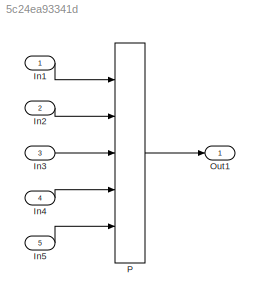
MODEL slx_5c24ea93341d
KIND model
CONFIG AbsTol = auto
CONFIG EnableMultiTasking = off
CONFIG FixedStep = auto
CONFIG MaxStep = auto
CONFIG MinStep = auto
CONFIG RelTol = 1e-3
CONFIG SampleTimeConstraint = Unconstrained
CONFIG Solver = FixedStepDiscrete
CONFIG SolverName = FixedStepDiscrete
CONFIG StartTime = 0.0
CONFIG StopTime = 10.0
BLOCK [Inport] In1
  IconDisplay = Port number
  OutDataTypeStr = uint16
  OutMax = 127
  OutMin = 0
  PortDimensions = 1
BLOCK [Inport] In2
  IconDisplay = Port number
  OutDataTypeStr = uint16
  OutMax = 127
  OutMin = 0
  Port = 2
BLOCK [Inport] In3
  IconDisplay = Port number
  OutDataTypeStr = uint16
  OutMax = 127
  OutMin = 0
  Port = 3
BLOCK [Inport] In4
  IconDisplay = Port number
  OutDataTypeStr = uint16
  OutMax = 127
  OutMin = 0
  Port = 4
BLOCK [Inport] In5
  IconDisplay = Port number
  OutDataTypeStr = uint16
  OutMax = 127
  OutMin = 0
  Port = 5
BLOCK [Outport] Out1
  IconDisplay = Port number
BLOCK [Lookup_n-D] P
  BreakpointsForDimension1 = [33.52655404423;65.684364410211]
  BreakpointsForDimension1DataTypeStr = uint8
  BreakpointsForDimension2 = [10.0247000996319;42.4066314454977;64.7030151177043;92.5736199402267;98.5706371241846]
  BreakpointsForDimension2DataTypeStr = uint8
  BreakpointsForDimension3 = [13.6660689109613;73.9620228661448;88.3198327993509]
  BreakpointsForDimension3DataTypeStr = uint8
  BreakpointsForDimension4 = [6.0885242694459;38.1838709600621]
  BreakpointsForDimension4DataTypeStr = uint8
  BreakpointsForDimension5 = [52.525770642839;60.7033100453501;90.3280215422356]
  BreakpointsForDimension5DataTypeStr = uint8
  ExtrapMethod = Clip
  InternalRulePriority = Speed
  InterpMethod = Flat
  NumberOfTableDimensions = 5
  OutDataTypeStr = uint8
  Ports = [5, 1]
  RndMeth = Round
  SaturateOnIntegerOverflow = on
  Table = reshape(repmat([4 5 6 7 8;16 19 20 21 22;10 18 23 24 25],6,2),[2,5,3,2,3])
  TableDataTypeStr = Inherit: Inherit from 'Table data'
LINE In1:1 -> P:1
LINE In2:1 -> P:2
LINE In3:1 -> P:3
LINE In4:1 -> P:4
LINE In5:1 -> P:5
LINE P:1 -> Out1:1
